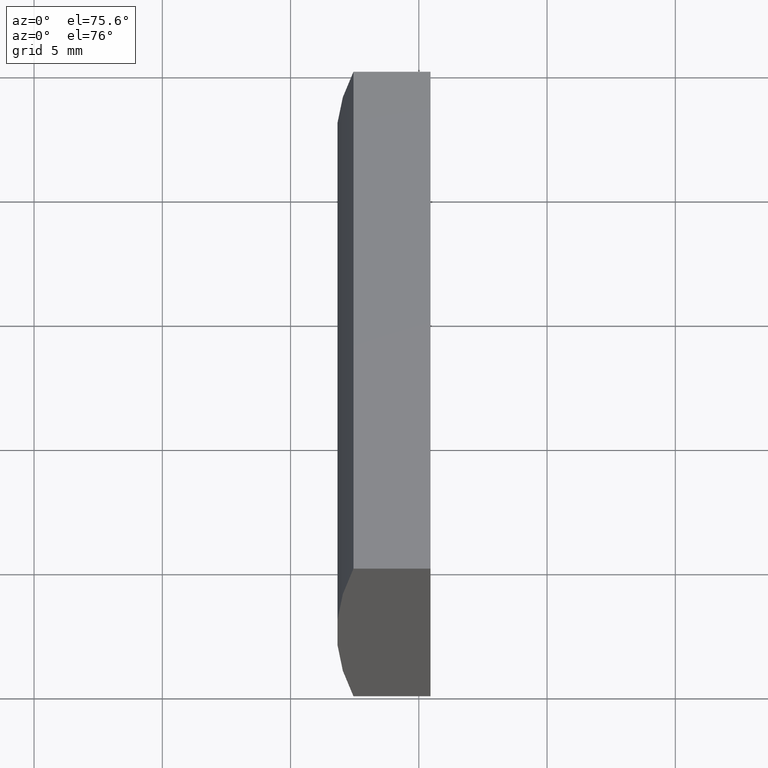
[diagram: clean part render]
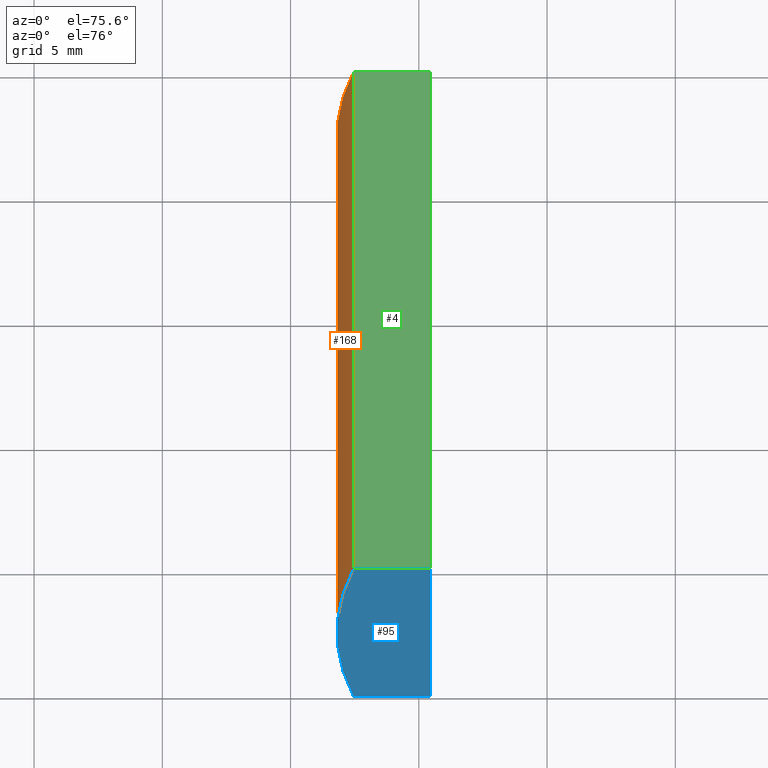
[diagram: same view with three faces highlighted in distinct colors, each labeled with its STEP entity id]
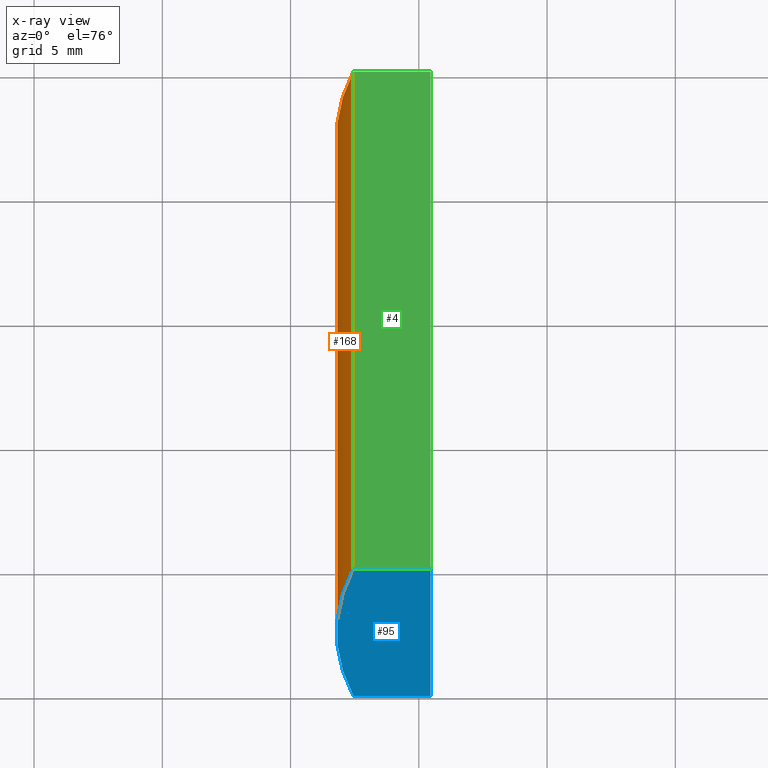
[diagram: x-ray of the same camera — body ghosted, the three highlighted faces saturated]
A machine part, auxiliary view with three faces highlighted in distinct colors.
The next image is the same camera in x-ray (body ghosted, the three faces saturated) — at least one of them is partly hidden behind the body in this view.
Their STEP definitions:

[orange] entity #168 — the highlighted cylindrical surface (partial cylindrical patch) has radius 77.55 mm, axis along (-0, -1, -0).
#14 = CARTESIAN_POINT ( 'NONE',  ( -72.54734763840902200, 0.0000000000000000000, -10.00000000000000000 ) ) ;
#22 = CARTESIAN_POINT ( 'NONE',  ( -72.54734763840902200, 20.00000000000000000, 10.00000000000000000 ) ) ;
#30 = ORIENTED_EDGE ( 'NONE', *, *, #164, .F. ) ;
#34 = VERTEX_POINT ( 'NONE', #14 ) ;
#36 = FACE_OUTER_BOUND ( 'NONE', #147, .T. ) ;
#38 = ORIENTED_EDGE ( 'NONE', *, *, #94, .F. ) ;
#44 = VERTEX_POINT ( 'NONE', #22 ) ;
#49 = CARTESIAN_POINT ( 'NONE',  ( -72.54734763840902200, 20.00000000000000000, -10.00000000000000000 ) ) ;
#59 = CARTESIAN_POINT ( 'NONE',  ( -72.54734763840902200, 0.0000000000000000000, 10.00000000000000000 ) ) ;
#60 = CIRCLE ( 'NONE', #68, 77.54999999999999700 ) ;
#62 = AXIS2_PLACEMENT_3D ( 'NONE', #201, #70, #138 ) ;
#64 = CARTESIAN_POINT ( 'NONE',  ( 4.355204334851265500, 0.0000000000000000000, 4.286263797015675000E-017 ) ) ;
#66 = AXIS2_PLACEMENT_3D ( 'NONE', #146, #148, #140 ) ;
#68 = AXIS2_PLACEMENT_3D ( 'NONE', #64, #72, #129 ) ;
#70 = DIRECTION ( 'NONE',  ( -0.0000000000000000000, -1.000000000000000000, -0.0000000000000000000 ) ) ;
#72 = DIRECTION ( 'NONE',  ( 0.0000000000000000000, 1.000000000000000000, 0.0000000000000000000 ) ) ;
#82 = VECTOR ( 'NONE', #124, 1000.000000000000000 ) ;
#91 = ORIENTED_EDGE ( 'NONE', *, *, #169, .T. ) ;
#93 = CIRCLE ( 'NONE', #66, 77.54999999999999700 ) ;
#94 = EDGE_CURVE ( 'NONE', #44, #197, #158, .T. ) ;
#102 = DIRECTION ( 'NONE',  ( -0.0000000000000000000, -1.000000000000000000, -0.0000000000000000000 ) ) ;
#105 = ORIENTED_EDGE ( 'NONE', *, *, #159, .T. ) ;
#119 = VECTOR ( 'NONE', #102, 1000.000000000000000 ) ;
#124 = DIRECTION ( 'NONE',  ( -0.0000000000000000000, -1.000000000000000000, -0.0000000000000000000 ) ) ;
#129 = DIRECTION ( 'NONE',  ( 0.0000000000000000000, 0.0000000000000000000, 1.000000000000000000 ) ) ;
#138 = DIRECTION ( 'NONE',  ( 0.0000000000000000000, 0.0000000000000000000, -1.000000000000000000 ) ) ;
#140 = DIRECTION ( 'NONE',  ( 0.0000000000000000000, 0.0000000000000000000, 1.000000000000000000 ) ) ;
#146 = CARTESIAN_POINT ( 'NONE',  ( 4.355204334851265500, 20.00000000000000000, 4.286263797015675000E-017 ) ) ;
#147 = EDGE_LOOP ( 'NONE', ( #91, #38, #30, #105 ) ) ;
#148 = DIRECTION ( 'NONE',  ( 0.0000000000000000000, 1.000000000000000000, 0.0000000000000000000 ) ) ;
#152 = LINE ( 'NONE', #49, #82 ) ;
#158 = LINE ( 'NONE', #170, #119 ) ;
#159 = EDGE_CURVE ( 'NONE', #189, #34, #152, .T. ) ;
#164 = EDGE_CURVE ( 'NONE', #189, #44, #93, .T. ) ;
#166 = CYLINDRICAL_SURFACE ( 'NONE', #62, 77.54999999999999700 ) ;
#168 = ADVANCED_FACE ( 'NONE', ( #36 ), #166, .T. ) ;
#169 = EDGE_CURVE ( 'NONE', #34, #197, #60, .T. ) ;
#170 = CARTESIAN_POINT ( 'NONE',  ( -72.54734763840902200, 20.00000000000000000, 10.00000000000000000 ) ) ;
#184 = CARTESIAN_POINT ( 'NONE',  ( -72.54734763840902200, 20.00000000000000000, -10.00000000000000000 ) ) ;
#189 = VERTEX_POINT ( 'NONE', #184 ) ;
#197 = VERTEX_POINT ( 'NONE', #59 ) ;
#201 = CARTESIAN_POINT ( 'NONE',  ( 4.355204334851265500, 20.00000000000000000, 4.286263797015675000E-017 ) ) ;

[blue] entity #95 — the highlighted planar face has unit normal (0, 1, 0).
#12 = LINE ( 'NONE', #13, #144 ) ;
#13 = CARTESIAN_POINT ( 'NONE',  ( -72.54734763840902200, 0.0000000000000000000, -10.00000000000000000 ) ) ;
#14 = CARTESIAN_POINT ( 'NONE',  ( -72.54734763840902200, 0.0000000000000000000, -10.00000000000000000 ) ) ;
#15 = EDGE_CURVE ( 'NONE', #197, #113, #120, .T. ) ;
#26 = CARTESIAN_POINT ( 'NONE',  ( -69.54479566514874000, 0.0000000000000000000, 10.00000000000000000 ) ) ;
#34 = VERTEX_POINT ( 'NONE', #14 ) ;
#39 = DIRECTION ( 'NONE',  ( 0.0000000000000000000, -0.0000000000000000000, 1.000000000000000000 ) ) ;
#40 = CARTESIAN_POINT ( 'NONE',  ( -72.54734763840902200, 0.0000000000000000000, 10.00000000000000000 ) ) ;
#46 = DIRECTION ( 'NONE',  ( 1.000000000000000000, 0.0000000000000000000, 0.0000000000000000000 ) ) ;
#58 = DIRECTION ( 'NONE',  ( -1.000000000000000000, -0.0000000000000000000, 1.155499382808803800E-015 ) ) ;
#59 = CARTESIAN_POINT ( 'NONE',  ( -72.54734763840902200, 0.0000000000000000000, 10.00000000000000000 ) ) ;
#60 = CIRCLE ( 'NONE', #68, 77.54999999999999700 ) ;
#64 = CARTESIAN_POINT ( 'NONE',  ( 4.355204334851265500, 0.0000000000000000000, 4.286263797015675000E-017 ) ) ;
#68 = AXIS2_PLACEMENT_3D ( 'NONE', #64, #72, #129 ) ;
#69 = LINE ( 'NONE', #194, #186 ) ;
#72 = DIRECTION ( 'NONE',  ( 0.0000000000000000000, 1.000000000000000000, 0.0000000000000000000 ) ) ;
#76 = CARTESIAN_POINT ( 'NONE',  ( 4.355204334851265500, 0.0000000000000000000, 4.286263797015675000E-017 ) ) ;
#80 = ORIENTED_EDGE ( 'NONE', *, *, #15, .F. ) ;
#83 = CARTESIAN_POINT ( 'NONE',  ( -69.54479566514874000, 0.0000000000000000000, -10.00000000000000400 ) ) ;
#95 = ADVANCED_FACE ( 'NONE', ( #204 ), #156, .F. ) ;
#113 = VERTEX_POINT ( 'NONE', #26 ) ;
#120 = LINE ( 'NONE', #40, #160 ) ;
#129 = DIRECTION ( 'NONE',  ( 0.0000000000000000000, 0.0000000000000000000, 1.000000000000000000 ) ) ;
#134 = EDGE_CURVE ( 'NONE', #113, #157, #69, .T. ) ;
#144 = VECTOR ( 'NONE', #58, 1000.000000000000000 ) ;
#150 = AXIS2_PLACEMENT_3D ( 'NONE', #76, #199, #39 ) ;
#156 = PLANE ( 'NONE',  #150 ) ;
#157 = VERTEX_POINT ( 'NONE', #83 ) ;
#160 = VECTOR ( 'NONE', #46, 1000.000000000000000 ) ;
#161 = ORIENTED_EDGE ( 'NONE', *, *, #192, .F. ) ;
#163 = EDGE_LOOP ( 'NONE', ( #177, #161, #179, #80 ) ) ;
#169 = EDGE_CURVE ( 'NONE', #34, #197, #60, .T. ) ;
#177 = ORIENTED_EDGE ( 'NONE', *, *, #169, .F. ) ;
#179 = ORIENTED_EDGE ( 'NONE', *, *, #134, .F. ) ;
#186 = VECTOR ( 'NONE', #202, 1000.000000000000000 ) ;
#192 = EDGE_CURVE ( 'NONE', #157, #34, #12, .T. ) ;
#194 = CARTESIAN_POINT ( 'NONE',  ( -69.54479566514874000, 0.0000000000000000000, -10.00000000000000400 ) ) ;
#197 = VERTEX_POINT ( 'NONE', #59 ) ;
#199 = DIRECTION ( 'NONE',  ( 0.0000000000000000000, 1.000000000000000000, 0.0000000000000000000 ) ) ;
#202 = DIRECTION ( 'NONE',  ( -0.0000000000000000000, -0.0000000000000000000, -1.000000000000000000 ) ) ;
#204 = FACE_OUTER_BOUND ( 'NONE', #163, .T. ) ;

[green] entity #4 — the highlighted planar face has unit normal (0, 0, -1).
#2 = VECTOR ( 'NONE', #24, 1000.000000000000000 ) ;
#4 = ADVANCED_FACE ( 'NONE', ( #135 ), #42, .F. ) ;
#8 = LINE ( 'NONE', #183, #63 ) ;
#9 = DIRECTION ( 'NONE',  ( -1.000000000000000000, 0.0000000000000000000, -0.0000000000000000000 ) ) ;
#15 = EDGE_CURVE ( 'NONE', #197, #113, #120, .T. ) ;
#22 = CARTESIAN_POINT ( 'NONE',  ( -72.54734763840902200, 20.00000000000000000, 10.00000000000000000 ) ) ;
#23 = DIRECTION ( 'NONE',  ( 0.0000000000000000000, 0.0000000000000000000, -1.000000000000000000 ) ) ;
#24 = DIRECTION ( 'NONE',  ( 1.000000000000000000, 0.0000000000000000000, 0.0000000000000000000 ) ) ;
#26 = CARTESIAN_POINT ( 'NONE',  ( -69.54479566514874000, 0.0000000000000000000, 10.00000000000000000 ) ) ;
#35 = CARTESIAN_POINT ( 'NONE',  ( -72.54734763840902200, 20.00000000000000000, 10.00000000000000000 ) ) ;
#40 = CARTESIAN_POINT ( 'NONE',  ( -72.54734763840902200, 0.0000000000000000000, 10.00000000000000000 ) ) ;
#42 = PLANE ( 'NONE',  #165 ) ;
#44 = VERTEX_POINT ( 'NONE', #22 ) ;
#46 = DIRECTION ( 'NONE',  ( 1.000000000000000000, 0.0000000000000000000, 0.0000000000000000000 ) ) ;
#59 = CARTESIAN_POINT ( 'NONE',  ( -72.54734763840902200, 0.0000000000000000000, 10.00000000000000000 ) ) ;
#63 = VECTOR ( 'NONE', #110, 1000.000000000000000 ) ;
#79 = VERTEX_POINT ( 'NONE', #92 ) ;
#88 = EDGE_LOOP ( 'NONE', ( #139, #195, #99, #122 ) ) ;
#92 = CARTESIAN_POINT ( 'NONE',  ( -69.54479566514874000, 20.00000000000000000, 10.00000000000000000 ) ) ;
#94 = EDGE_CURVE ( 'NONE', #44, #197, #158, .T. ) ;
#99 = ORIENTED_EDGE ( 'NONE', *, *, #178, .F. ) ;
#102 = DIRECTION ( 'NONE',  ( -0.0000000000000000000, -1.000000000000000000, -0.0000000000000000000 ) ) ;
#110 = DIRECTION ( 'NONE',  ( -0.0000000000000000000, -1.000000000000000000, -0.0000000000000000000 ) ) ;
#113 = VERTEX_POINT ( 'NONE', #26 ) ;
#119 = VECTOR ( 'NONE', #102, 1000.000000000000000 ) ;
#120 = LINE ( 'NONE', #40, #160 ) ;
#122 = ORIENTED_EDGE ( 'NONE', *, *, #94, .T. ) ;
#126 = LINE ( 'NONE', #181, #2 ) ;
#135 = FACE_OUTER_BOUND ( 'NONE', #88, .T. ) ;
#139 = ORIENTED_EDGE ( 'NONE', *, *, #15, .T. ) ;
#158 = LINE ( 'NONE', #170, #119 ) ;
#160 = VECTOR ( 'NONE', #46, 1000.000000000000000 ) ;
#165 = AXIS2_PLACEMENT_3D ( 'NONE', #35, #23, #9 ) ;
#170 = CARTESIAN_POINT ( 'NONE',  ( -72.54734763840902200, 20.00000000000000000, 10.00000000000000000 ) ) ;
#178 = EDGE_CURVE ( 'NONE', #44, #79, #126, .T. ) ;
#181 = CARTESIAN_POINT ( 'NONE',  ( -72.54734763840902200, 20.00000000000000000, 10.00000000000000000 ) ) ;
#183 = CARTESIAN_POINT ( 'NONE',  ( -69.54479566514874000, 20.00000000000000000, 10.00000000000000000 ) ) ;
#191 = EDGE_CURVE ( 'NONE', #79, #113, #8, .T. ) ;
#195 = ORIENTED_EDGE ( 'NONE', *, *, #191, .F. ) ;
#197 = VERTEX_POINT ( 'NONE', #59 ) ;